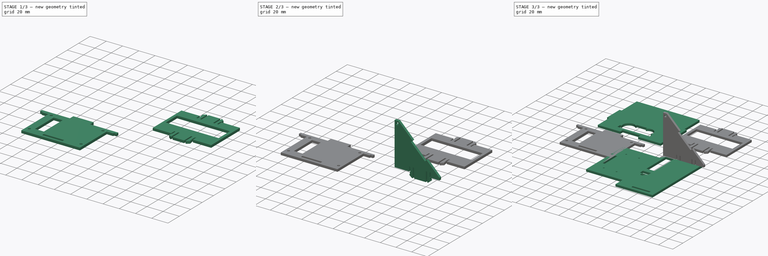
[diagram: build sequence overview — one tinted view per stage of 3, left to right]
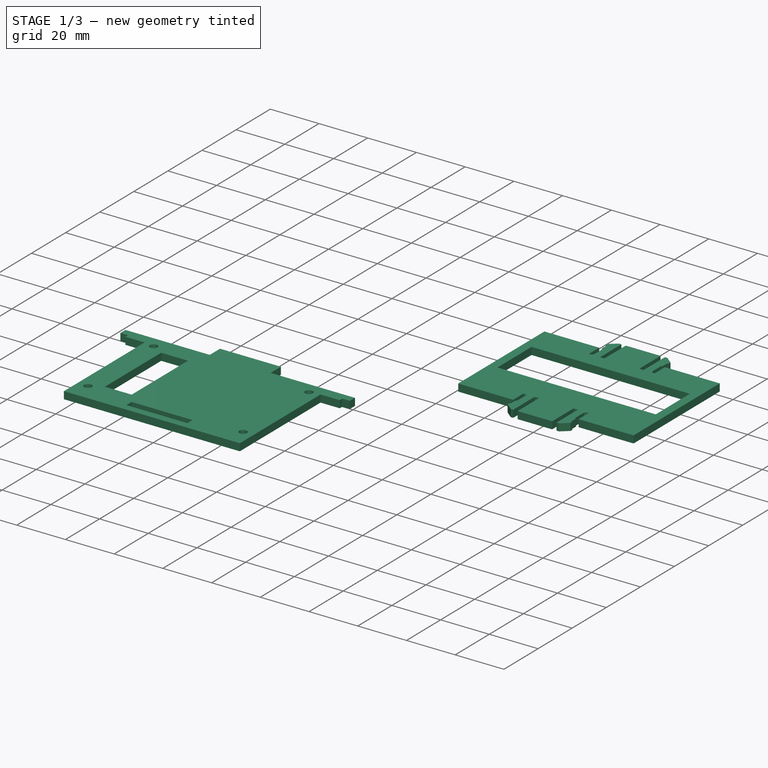
[diagram: stage 1 of 3 — iso view after this stage's code; geometry added in this stage tinted green]
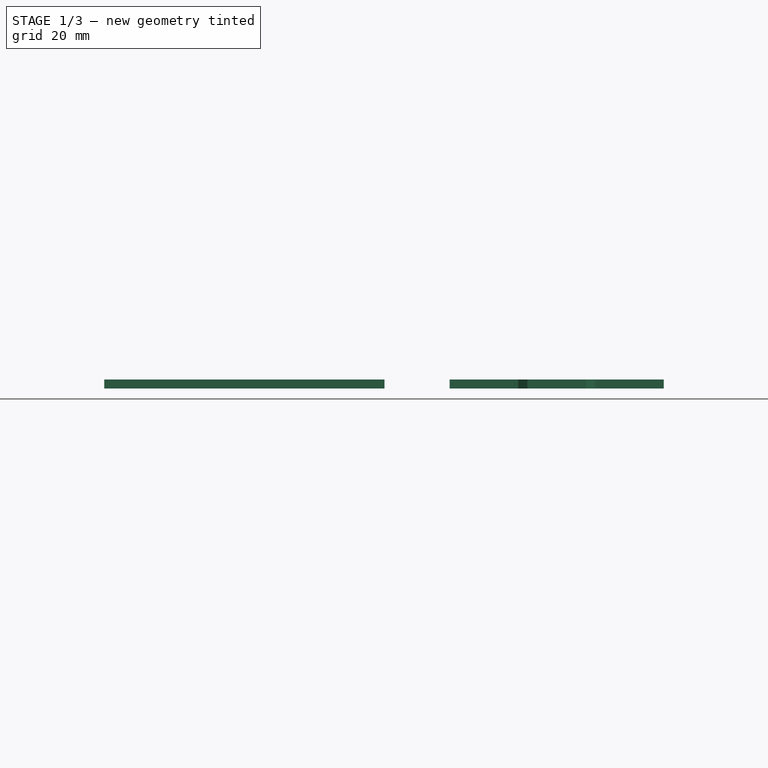
[diagram: stage 1 of 3 — front view after this stage's code; geometry added in this stage tinted green]
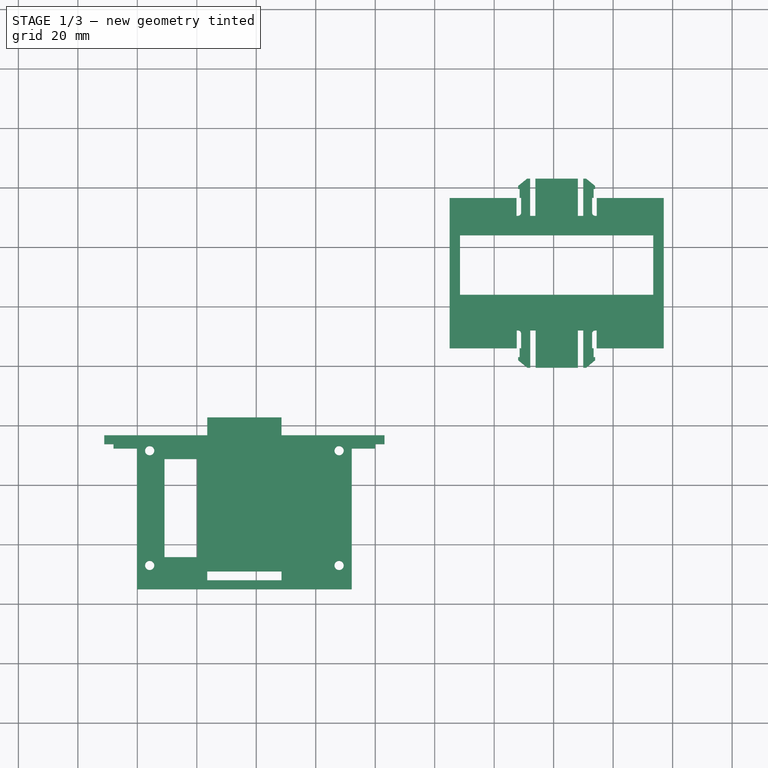
[diagram: stage 1 of 3 — top view after this stage's code; geometry added in this stage tinted green]
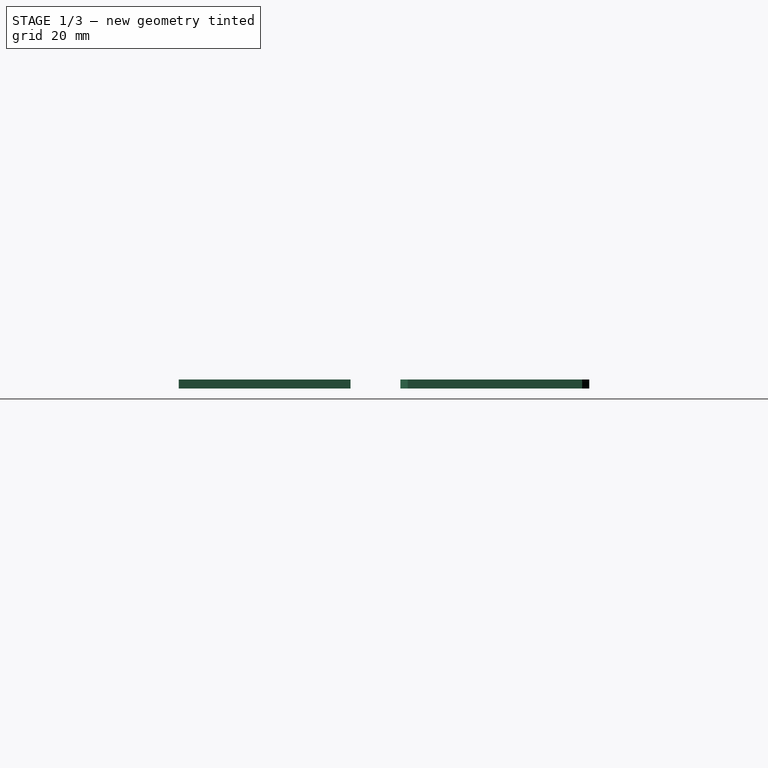
[diagram: stage 1 of 3 — right view after this stage's code; geometry added in this stage tinted green]
FCSTD DOCUMENT  (FreeCAD 0.19R24267 +148 (Git))
Label: Sumobot_acrilic_3mm
License: All rights reserved
LicenseURL: http://en.wikipedia.org/wiki/All_rights_reserved
objects: Sketcher::SketchObject×5, PartDesign::Pad×5, PartDesign::Body×5, App::Part×5, Part::FeaturePython×1
note: 21 computed .brp shape members not serialized (recipe doc carries the construction recipe); baked Part::Feature solids carry a one-line shape summary decoded from their .brp

FEATURE [Sketcher::SketchObject] Sketch015
  FullyConstrained = true
  MapMode = 5
  Support = -> [XY_Plane008]
  sketch-geometry (79):
    g0: LineSegment StartX=72.93 StartY=43 StartZ=0 EndX=73.93 EndY=43 EndZ=0
    g1: LineSegment StartX=73.93 StartY=42 StartZ=0 EndX=70.93 EndY=39.5 EndZ=0
    g2: LineSegment StartX=70.93 StartY=39.5 StartZ=0 EndX=69.93 EndY=39.5 EndZ=0
    g3: LineSegment StartX=69.93 StartY=39.5 StartZ=0 EndX=69.93 EndY=52 EndZ=0
    g4: LineSegment StartX=69.93 StartY=52 StartZ=0 EndX=68.13 EndY=52 EndZ=0
    g5: LineSegment StartX=68.13 StartY=52 StartZ=0 EndX=68.13 EndY=39.5 EndZ=0
    g6: LineSegment StartX=68.13 StartY=39.5 StartZ=0 EndX=53.94 EndY=39.5 EndZ=0
    g7: LineSegment StartX=53.94 StartY=39.5 StartZ=0 EndX=53.94 EndY=52 EndZ=0
    g8: LineSegment StartX=53.94 StartY=52 StartZ=0 EndX=52.14 EndY=52 EndZ=0
    g9: LineSegment StartX=52.14 StartY=52 StartZ=0 EndX=52.14 EndY=39.5 EndZ=0
    g10: LineSegment StartX=52.14 StartY=39.5 StartZ=0 EndX=51.14 EndY=39.5 EndZ=0
    g11: LineSegment StartX=51.14 StartY=39.5 StartZ=0 EndX=48.07 EndY=42 EndZ=0
    g12: LineSegment StartX=48.07 StartY=43 StartZ=0 EndX=49.07 EndY=43 EndZ=0
    g13: LineSegment StartX=47.57 StartY=46 StartZ=0 EndX=25 EndY=46 EndZ=0
    g14: LineSegment StartX=73.93 StartY=42 StartZ=0 EndX=73.93 EndY=43 EndZ=0
    g15: LineSegment StartX=48.07 StartY=42 StartZ=0 EndX=48.07 EndY=43 EndZ=0
    g16: LineSegment StartX=47.57 StartY=46 StartZ=0 EndX=47.57 EndY=52 EndZ=0
    g17: LineSegment StartX=47.57 StartY=52 StartZ=0 EndX=48.07 EndY=52 EndZ=0
    g18: LineSegment StartX=73.93 StartY=52 StartZ=0 EndX=74.43 EndY=52 EndZ=0
    g19: LineSegment StartX=74.43 StartY=52 StartZ=0 EndX=74.43 EndY=46 EndZ=0
    g20: LineSegment StartX=97 StartY=46 StartZ=0 EndX=74.43 EndY=46 EndZ=0
    g21: LineSegment StartX=69.93 StartY=52 StartZ=0 EndX=73.93 EndY=52 EndZ=0
    g22: LineSegment StartX=48.07 StartY=52 StartZ=0 EndX=52.14 EndY=52 EndZ=0
    g23: ArcOfCircle CenterX=48.07 CenterY=51 CenterZ=0 NormalX=0 NormalY=0 NormalZ=1 AngleXU=0 Radius=1 StartAngle=-1.8e-15 EndAngle=1.5708
    g24: ArcOfCircle CenterX=73.93 CenterY=51 CenterZ=0 NormalX=0 NormalY=0 NormalZ=1 AngleXU=0 Radius=1 StartAngle=1.5708 EndAngle=3.14159
    g25: LineSegment StartX=49.07 StartY=43 StartZ=0 EndX=49.07 EndY=51 EndZ=0
    g26: LineSegment StartX=72.93 StartY=43 StartZ=0 EndX=72.93 EndY=51 EndZ=0
    g27: LineSegment StartX=25 StartY=96.537 StartZ=0 EndX=25 EndY=46 EndZ=0
    g28: LineSegment StartX=97 StartY=46 StartZ=0 EndX=97 EndY=96.537 EndZ=0
    g29: LineSegment StartX=25 StartY=96.537 StartZ=0 EndX=47.5 EndY=96.537 EndZ=0
    g30: LineSegment StartX=47.5 StartY=96.537 StartZ=0 EndX=47.5 EndY=90.537 EndZ=0
    g31: LineSegment StartX=47.5 StartY=90.537 StartZ=0 EndX=48 EndY=90.537 EndZ=0
    g32: LineSegment StartX=49.07 StartY=91.607 StartZ=0 EndX=49.07 EndY=99.607 EndZ=0
    g33: LineSegment StartX=49.07 StartY=99.607 StartZ=0 EndX=48.07 EndY=99.607 EndZ=0
    g34: LineSegment StartX=48.07 StartY=99.607 StartZ=0 EndX=48.07 EndY=100.607 EndZ=0
    g35: LineSegment StartX=48.07 StartY=100.607 StartZ=0 EndX=51.07 EndY=103.037 EndZ=0
    g36: LineSegment StartX=51.07 StartY=103.037 StartZ=0 EndX=52.07 EndY=103.037 EndZ=0
    g37: LineSegment StartX=52.07 StartY=103.037 StartZ=0 EndX=52.07 EndY=90.537 EndZ=0
    g38: LineSegment StartX=69.93 StartY=90.537 StartZ=0 EndX=69.93 EndY=103.037 EndZ=0
    g39: LineSegment StartX=69.93 StartY=103.037 StartZ=0 EndX=70.93 EndY=103.037 EndZ=0
    g40: LineSegment StartX=70.93 StartY=103.037 StartZ=0 EndX=73.93 EndY=100.607 EndZ=0
    g41: LineSegment StartX=73.93 StartY=100.607 StartZ=0 EndX=73.93 EndY=99.607 EndZ=0
    g42: LineSegment StartX=73.93 StartY=99.607 StartZ=0 EndX=72.93 EndY=99.607 EndZ=0
    g43: LineSegment StartX=72.93 StartY=99.607 StartZ=0 EndX=72.93 EndY=91.607 EndZ=0
    g44: LineSegment StartX=74 StartY=90.537 StartZ=0 EndX=74.5 EndY=90.537 EndZ=0
    g45: LineSegment StartX=74.5 StartY=90.537 StartZ=0 EndX=74.5 EndY=96.537 EndZ=0
    g46: LineSegment StartX=74.5 StartY=96.537 StartZ=0 EndX=97 EndY=96.537 EndZ=0
    g47: ArcOfCircle CenterX=48 CenterY=91.607 CenterZ=0 NormalX=0 NormalY=0 NormalZ=1 AngleXU=0 Radius=1.07 StartAngle=4.71239 EndAngle=6.28319
    g48: ArcOfCircle CenterX=74 CenterY=91.607 CenterZ=0 NormalX=0 NormalY=0 NormalZ=1 AngleXU=0 Radius=1.07 StartAngle=3.14159 EndAngle=4.71239
    g49: LineSegment StartX=48 StartY=90.537 StartZ=0 EndX=52.07 EndY=90.537 EndZ=0
    g50: LineSegment StartX=69.93 StartY=90.537 StartZ=0 EndX=74 EndY=90.537 EndZ=0
    g51: LineSegment StartX=52.07 StartY=90.537 StartZ=0 EndX=53.87 EndY=90.537 EndZ=0
    g52: LineSegment StartX=53.87 StartY=90.537 StartZ=0 EndX=53.87 EndY=103.037 EndZ=0
    g53: LineSegment StartX=53.87 StartY=103.037 StartZ=0 EndX=68.13 EndY=103.037 EndZ=0
    g54: LineSegment StartX=68.13 StartY=103.037 StartZ=0 EndX=68.13 EndY=90.537 EndZ=0
    g55: LineSegment StartX=68.13 StartY=90.537 StartZ=0 EndX=69.93 EndY=90.537 EndZ=0
    g56: LineSegment StartX=28.5 StartY=84 StartZ=0 EndX=93.5 EndY=84 EndZ=0
    g57: LineSegment StartX=93.5 StartY=84 StartZ=0 EndX=93.5 EndY=64 EndZ=0
    g58: LineSegment StartX=93.5 StartY=64 StartZ=0 EndX=28.5 EndY=64 EndZ=0
    g59: LineSegment StartX=28.5 StartY=64 StartZ=0 EndX=28.5 EndY=84 EndZ=0
    g60: LineSegment StartX=48.07 StartY=99.607 StartZ=0 EndX=48.57 EndY=99.607 EndZ=0
    g61: LineSegment StartX=48.57 StartY=99.607 StartZ=0 EndX=48.57 EndY=96.607 EndZ=0
    g62: LineSegment StartX=48.57 StartY=96.607 StartZ=0 EndX=49.07 EndY=96.607 EndZ=0
    g63: LineSegment StartX=49.07 StartY=96.607 StartZ=0 EndX=49.07 EndY=91.607 EndZ=0
    g64: LineSegment StartX=73.93 StartY=99.607 StartZ=0 EndX=73.43 EndY=99.607 EndZ=0
    g65: LineSegment StartX=73.43 StartY=99.607 StartZ=0 EndX=73.43 EndY=96.607 EndZ=0
    g66: LineSegment StartX=73.43 StartY=96.607 StartZ=0 EndX=72.93 EndY=96.607 EndZ=0
    g67: LineSegment StartX=72.93 StartY=96.607 StartZ=0 EndX=72.93 EndY=91.607 EndZ=0
    g68: LineSegment StartX=48.07 StartY=43 StartZ=0 EndX=48.57 EndY=43 EndZ=0
    g69: LineSegment StartX=48.57 StartY=43 StartZ=0 EndX=48.57 EndY=46 EndZ=0
    g70: LineSegment StartX=48.57 StartY=46 StartZ=0 EndX=49.07 EndY=46 EndZ=0
    g71: LineSegment StartX=49.07 StartY=46 StartZ=0 EndX=49.07 EndY=51 EndZ=0
    g72: LineSegment StartX=73.93 StartY=43 StartZ=0 EndX=73.43 EndY=43 EndZ=0
    g73: LineSegment StartX=73.43 StartY=43 StartZ=0 EndX=73.43 EndY=46 EndZ=0
    g74: LineSegment StartX=73.43 StartY=46 StartZ=0 EndX=72.93 EndY=46 EndZ=0
    g75: LineSegment StartX=72.93 StartY=46 StartZ=0 EndX=72.93 EndY=51 EndZ=0
    g76: LineSegment StartX=28.5 StartY=84 StartZ=0 EndX=25 EndY=84 EndZ=0
    g77: LineSegment StartX=93.5 StartY=84 StartZ=0 EndX=97 EndY=84 EndZ=0
    g78: LineSegment StartX=93.5 StartY=64 StartZ=0 EndX=93.5 EndY=46 EndZ=0
  constraints (221):
    c: Coincident(g1,g2)
    c: Horizontal(g2)
    c: Coincident(g2,g3)
    c: Vertical(g3)
    c: Coincident(g3,g4)
    c: Coincident(g4,g5)
    c: Coincident(g5,g6)
    c: Coincident(g6,g7)
    c: Vertical(g7)
    c: Coincident(g7,g8)
    c: Horizontal(g8)
    c: Coincident(g8,g9)
    c: Vertical(g9)
    c: Coincident(g9,g10)
    c: Horizontal(g10)
    c: Coincident(g10,g11)
    c: Horizontal(g12)
    c: Horizontal(g4)
    c: Equal(g4,g8)
    c: Vertical(g5)
    c: Horizontal(g13)
    c: Equal(g5,g3)
    c: Equal(g2,g10)
    c: Horizontal(g0)
    c: Equal(g9,g7)
    c: DistanceX(g2,g2) = 1
    c: Vertical(g14)
    c: Coincident(g1,g14)
    c: Coincident(g0,g14)
    c: Equal(g2,g14)
    c: Vertical(g15)
    c: Coincident(g11,g15)
    c: Coincident(g12,g15)
    c: Equal(g12,g0)
    c: Equal(g15,g14)
    c: Vertical(g16)
    c: Coincident(g16,g17)
    c: Coincident(g18,g19)
    c: Vertical(g19)
    c: Horizontal(g18)
    c: Horizontal(g17)
    c: Horizontal(g20)
    c: Coincident(g13,g16)
    c: Equal(g17,g18)
    c: Coincident(g21,g3)
    c: Horizontal(g21)
    c: Coincident(g22,g8)
    c: Horizontal(g22)
    c: Coincident(g19,g20)
    c: Equal(g7,g5)
    c: Tangent(g17,g23) = 1.5708
    c: Tangent(g18,g24) = 1.5708
    c: Coincident(g17,g22)
    c: Equal(g23,g24)
    c: Coincident(g18,g21)
    c: Radius(g23) = 1
    c: DistanceX(g8,g8) = 1.8
    c: DistanceX(g22,g22) = 4.07
    c: DistanceX(g0,g0) = 1
    c: Coincident(g25,g12)
    c: Vertical(g25)
    c: DistanceY(g25,g25) = 8
    c: Coincident(g26,g0)
    c: Vertical(g26)
    c: Equal(g26,g25)
    c: DistanceX(g3,g24) = 3
    c: DistanceX(g17,g17) = 0.5
    c: Tangent(g25,g23) = -1.5708
    c: Tangent(g26,g24) = 1.5708
    c: DistanceY(g7,g7) = 12.5
    c: DistanceY(g13,g16) = 6
    c: Equal(g19,g16)
    c: Horizontal(g6)
    c: Coincident(g27,g13)
    c: Vertical(g27)
    c: DistanceX(g11,g1) = 25.86
    c: Equal(g20,g13)
    c: DistanceX(g20) = 97
    c: DistanceY(g20) = 46
    c: DistanceX(g13,g20) = 72
    c: Coincident(g28,g20)
    c: Vertical(g28)
    c: Horizontal(g29)
    c: Coincident(g29,g30)
    c: Vertical(g30)
    c: Coincident(g30,g31)
    c: Coincident(g32,g33)
    c: Horizontal(g33)
    c: Coincident(g33,g34)
    c: Vertical(g34)
    c: Coincident(g34,g35)
    c: Coincident(g35,g36)
    c: Horizontal(g36)
    c: Coincident(g36,g37)
    c: Vertical(g37)
    c: Vertical(g38)
    c: Coincident(g38,g39)
    c: Coincident(g39,g40)
    c: Coincident(g40,g41)
    c: Coincident(g41,g42)
    c: Horizontal(g42)
    c: Coincident(g42,g43)
    c: Coincident(g44,g45)
    c: Coincident(g45,g46)
    c: Horizontal(g46)
    c: Vertical(g32)
    c: Vertical(g43)
    c: Vertical(g45)
    c: Horizontal(g31)
    c: Horizontal(g44)
    c: Tangent(g31,g47) = -1.5708
    c: Tangent(g32,g47) = -1.5708
    c: Tangent(g43,g48) = -1.5708
    c: Tangent(g44,g48) = -1.5708
    c: Equal(g32,g43)
    c: Equal(g37,g38)
    c: Horizontal(g39)
    c: Equal(g39,g36)
    c: Equal(g33,g42)
    c: Coincident(g49,g31)
    c: Coincident(g49,g37)
    c: Horizontal(g49)
    c: Coincident(g50,g44)
    c: Tangent(g50,g48)
    c: Equal(g49,g50)
    c: Equal(g31,g44)
    c: DistanceX(g32,g37) = 3
    c: Vertical(g41)
    c: Equal(g34,g41)
    c: DistanceX(g42,g42) = 1
    c: Equal(g39,g42)
    c: Coincident(g37,g51)
    c: Coincident(g51,g52)
    c: Vertical(g52)
    c: Coincident(g52,g53)
    c: Horizontal(g53)
    c: Coincident(g53,g54)
    c: Vertical(g54)
    c: Coincident(g54,g55)
    c: Coincident(g55,g38)
    c: Horizontal(g55)
    c: Horizontal(g51)
    c: Equal(g54,g38)
    c: Equal(g37,g52)
    c: DistanceY(g54,g54) = 12.5
    c: Coincident(g50,g38)
    c: DistanceX(g49,g49) = 4.07
    c: DistanceY(g32,g32) = 8
    c: Equal(g55,g51)
    c: DistanceX(g55,g55) = 1.8
    c: DistanceX(g38,g43) = 3
    c: DistanceX(g44,g44) = 0.5
    c: DistanceY(g45,g45) = 6
    c: Equal(g30,g45)
    c: Equal(g34,g33)
    c: Coincident(g27,g29)
    c: Coincident(g46,g28)
    c: DistanceX(g34,g40) = 25.86
    c: Equal(g29,g46)
    c: Coincident(g56,g57)
    c: Coincident(g57,g58)
    c: Coincident(g58,g59)
    c: Coincident(g59,g56)
    c: Horizontal(g56)
    c: Horizontal(g58)
    c: Vertical(g57)
    c: Vertical(g59)
    c: DistanceY(g27,g27) = 50.537
    c: Coincident(g34,g60)
    c: Coincident(g60,g61)
    c: Vertical(g61)
    c: Coincident(g61,g62)
    c: PointOnObject(g62,g32)
    c: Horizontal(g62)
    c: Coincident(g62,g63)
    c: Coincident(g63,g47)
    c: Symmetric(g34,g32,g60)
    c: DistanceY(g61,g61) = 3
    c: Coincident(g41,g64)
    c: Coincident(g64,g65)
    c: Coincident(g65,g66)
    c: PointOnObject(g66,g43)
    c: Horizontal(g66)
    c: Coincident(g66,g67)
    c: Coincident(g67,g48)
    c: Vertical(g65)
    c: Symmetric(g42,g41,g64)
    c: Equal(g65,g61)
    c: Coincident(g15,g68)
    c: Coincident(g68,g69)
    c: Vertical(g69)
    c: Coincident(g69,g70)
    c: PointOnObject(g70,g25)
    c: Horizontal(g70)
    c: Coincident(g70,g71)
    c: Coincident(g71,g23)
    c: Symmetric(g15,g12,g68)
    c: DistanceY(g69,g69) = 3
    c: Coincident(g14,g72)
    c: Coincident(g72,g73)
    c: Vertical(g73)
    c: Coincident(g73,g74)
    c: PointOnObject(g74,g26)
    c: Horizontal(g74)
    c: Coincident(g74,g75)
    c: Coincident(g75,g24)
    c: Symmetric(g0,g14,g72)
    c: Equal(g69,g73)
    c: Coincident(g76,g56)
    c: PointOnObject(g76,g27)
    c: Coincident(g77,g56)
    c: PointOnObject(g77,g28)
    c: Horizontal(g77)
    c: Horizontal(g76)
    c: Equal(g77,g76)
    c: Coincident(g78,g57)
    c: PointOnObject(g78,g20)
    c: Vertical(g78)
    c: DistanceY(g57,g57) = 20
    c: DistanceX(g58,g58) = 65
    c: DistanceY(g78,g78) = 18
FEATURE [PartDesign::Pad] Pad003
  Direction = (1,1,1)
  Length = 3
  Length2 = 100
  Profile = -> Sketch015
  Type = 0
FEATURE [PartDesign::Body] Body003
  Group = -> [Sketch015,Pad003]
  Origin = -> Origin007
  Placement = pos=(-7,-102,-43) rot=(0.57735,0.57735,0.57735;2.0944rad)
  Tip = -> Pad003
FEATURE [App::Part] Part003  label="pared_trasera"
  Group = -> [Body003]
  Origin = -> Origin006
FEATURE [Sketcher::SketchObject] Sketch016
  FullyConstrained = true
  MapMode = 5
  Support = -> [XY_Plane010]
  sketch-geometry (42):
    g0: LineSegment StartX=-80.104 StartY=16.7479 StartZ=0 EndX=-56.5 EndY=16.7479 EndZ=0
    g1: LineSegment StartX=-56.5 StartY=16.7479 StartZ=0 EndX=-56.5 EndY=22.7479 EndZ=0
    g2: LineSegment StartX=-56.5 StartY=22.7479 StartZ=0 EndX=-31.5 EndY=22.7479 EndZ=0
    g3: LineSegment StartX=-31.5 StartY=22.7479 StartZ=0 EndX=-31.5 EndY=16.7479 EndZ=0
    g4: LineSegment StartX=-31.5 StartY=16.7479 StartZ=0 EndX=-7.896 EndY=16.7479 EndZ=0
    g5: LineSegment StartX=-7.896 StartY=16.7479 StartZ=0 EndX=-7.896 EndY=-35.0401 EndZ=0
    g6: LineSegment StartX=-7.896 StartY=-35.0401 StartZ=0 EndX=-80.104 EndY=-35.0401 EndZ=0
    g7: LineSegment StartX=-80.104 StartY=-35.0401 StartZ=0 EndX=-80.104 EndY=16.7479 EndZ=0
    g8: LineSegment StartX=-44 StartY=22.7479 StartZ=0 EndX=-44 EndY=-35.0401 EndZ=0
    g9: Circle CenterX=-75.85 CenterY=11.5599 CenterZ=0 NormalX=0 NormalY=0 NormalZ=1 AngleXU=0 Radius=1.55
    g10: Circle CenterX=-12.15 CenterY=11.5599 CenterZ=0 NormalX=0 NormalY=0 NormalZ=1 AngleXU=0 Radius=1.55
    g11: Circle CenterX=-12.15 CenterY=-27.0401 CenterZ=0 NormalX=0 NormalY=0 NormalZ=1 AngleXU=0 Radius=1.55
    g12: Circle CenterX=-75.85 CenterY=-27.0401 CenterZ=0 NormalX=0 NormalY=0 NormalZ=1 AngleXU=0 Radius=1.55
    g13: LineSegment StartX=-75.85 StartY=11.5599 StartZ=0 EndX=-12.15 EndY=11.5599 EndZ=0
    g14: LineSegment StartX=-12.15 StartY=11.5599 StartZ=0 EndX=-12.15 EndY=-27.0401 EndZ=0
    g15: LineSegment StartX=-12.15 StartY=-27.0401 StartZ=0 EndX=-75.85 EndY=-27.0401 EndZ=0
    g16: LineSegment StartX=-75.85 StartY=-27.0401 StartZ=0 EndX=-75.85 EndY=11.5599 EndZ=0
    g17: LineSegment StartX=-31.5 StartY=-32.0401 StartZ=0 EndX=-56.5 EndY=-32.0401 EndZ=0
    g18: LineSegment StartX=-56.5 StartY=-32.0401 StartZ=0 EndX=-56.5 EndY=-29.0401 EndZ=0
    g19: LineSegment StartX=-56.5 StartY=-29.0401 StartZ=0 EndX=-31.5 EndY=-29.0401 EndZ=0
    g20: LineSegment StartX=-31.5 StartY=-29.0401 StartZ=0 EndX=-31.5 EndY=-32.0401 EndZ=0
    g21: LineSegment StartX=-59.85 StartY=-24.2401 StartZ=0 EndX=-70.85 EndY=-24.2401 EndZ=0
    g22: LineSegment StartX=-70.85 StartY=-24.2401 StartZ=0 EndX=-70.85 EndY=8.75989 EndZ=0
    g23: LineSegment StartX=-70.85 StartY=8.75989 StartZ=0 EndX=-59.85 EndY=8.75989 EndZ=0
    g24: LineSegment StartX=-59.85 StartY=8.75989 StartZ=0 EndX=-59.85 EndY=-24.2401 EndZ=0
    g25: LineSegment StartX=-75.85 StartY=-7.74011 StartZ=0 EndX=-12.15 EndY=-7.74011 EndZ=0
    g26: LineSegment StartX=-80.104 StartY=16.7479 StartZ=0 EndX=-91.104 EndY=16.7479 EndZ=0
    g27: LineSegment StartX=-91.104 StartY=16.7479 StartZ=0 EndX=-91.104 EndY=13.7779 EndZ=0
    g28: LineSegment StartX=-91.104 StartY=13.7779 StartZ=0 EndX=-80.104 EndY=13.7779 EndZ=0
    g29: LineSegment StartX=-80.104 StartY=13.7779 StartZ=0 EndX=-80.104 EndY=-35.0401 EndZ=0
    g30: LineSegment StartX=-7.896 StartY=16.7479 StartZ=0 EndX=3.104 EndY=16.7479 EndZ=0
    g31: LineSegment StartX=3.104 StartY=16.7479 StartZ=0 EndX=3.104 EndY=13.7779 EndZ=0
    g32: LineSegment StartX=3.104 StartY=13.7779 StartZ=0 EndX=-7.896 EndY=13.7779 EndZ=0
    g33: LineSegment StartX=-7.896 StartY=13.7779 StartZ=0 EndX=-7.896 EndY=-35.0401 EndZ=0
    g34: LineSegment StartX=-91.104 StartY=13.7779 StartZ=0 EndX=-88.004 EndY=13.7779 EndZ=0
    g35: LineSegment StartX=-88.004 StartY=13.7779 StartZ=0 EndX=-88.004 EndY=12.2779 EndZ=0
    g36: LineSegment StartX=-88.004 StartY=12.2779 StartZ=0 EndX=-80.104 EndY=12.2779 EndZ=0
    g37: LineSegment StartX=-80.104 StartY=12.2779 StartZ=0 EndX=-80.104 EndY=-35.0401 EndZ=0
    g38: LineSegment StartX=3.104 StartY=13.7779 StartZ=0 EndX=0.004 EndY=13.7779 EndZ=0
    g39: LineSegment StartX=0.004 StartY=13.7779 StartZ=0 EndX=0.004 EndY=12.2779 EndZ=0
    g40: LineSegment StartX=0.004 StartY=12.2779 StartZ=0 EndX=-7.896 EndY=12.2779 EndZ=0
    g41: LineSegment StartX=-7.896 StartY=12.2779 StartZ=0 EndX=-7.896 EndY=-35.0401 EndZ=0
  constraints (115):
    c: Horizontal(g0)
    c: Coincident(g0,g1)
    c: Coincident(g1,g2)
    c: Horizontal(g2)
    c: Coincident(g2,g3)
    c: Vertical(g3)
    c: Coincident(g3,g4)
    c: Horizontal(g4)
    c: Coincident(g4,g5)
    c: Vertical(g5)
    c: Coincident(g5,g6)
    c: Horizontal(g6)
    c: Coincident(g6,g7)
    c: Coincident(g7,g0)
    c: Vertical(g7)
    c: Vertical(g1)
    c: Equal(g3,g1)
    c: Equal(g0,g4)
    c: PointOnObject(g8,g2)
    c: Vertical(g8)
    c: Symmetric(g6,g5,g8)
    c: DistanceX(g2) = -31.5
    c: DistanceY(g3,g3) = 6
    c: Coincident(g13,g14)
    c: Coincident(g14,g15)
    c: Coincident(g15,g16)
    c: Coincident(g16,g13)
    c: Horizontal(g13)
    c: Vertical(g14)
    c: Vertical(g16)
    c: Coincident(g13,g9)
    c: Coincident(g14,g11)
    c: Coincident(g13,g10)
    c: Coincident(g15,g12)
    c: Radius(g12) = 1.55
    c: DistanceY(g6,g12) = 8
    c: Equal(g12,g9)
    c: Equal(g9,g10)
    c: Equal(g10,g11)
    c: DistanceY(g14,g14) = 38.6
    c: Coincident(g17,g18)
    c: Coincident(g18,g19)
    c: Coincident(g19,g20)
    c: Coincident(g20,g17)
    c: Horizontal(g19)
    c: Vertical(g18)
    c: Vertical(g20)
    c: DistanceY(g20,g20) = 3
    c: DistanceX(g19,g19) = 25
    c: Coincident(g21,g22)
    c: Coincident(g22,g23)
    c: Coincident(g23,g24)
    c: Coincident(g24,g21)
    c: Horizontal(g21)
    c: Horizontal(g23)
    c: Vertical(g22)
    c: Vertical(g24)
    c: DistanceY(g22,g22) = 33
    c: DistanceX(g21,g21) = 11
    c: PointOnObject(g25,g16)
    c: Symmetric(g11,g10,g25)
    c: Symmetric(g21,g22,g25)
    c: DistanceX(g6,g6) = 72.208
    c: DistanceY(g7,g7) = 51.788
    c: DistanceX(g2,g2) = 25
    c: Symmetric(g12,g11,g8)
    c: DistanceX(g13,g13) = 63.7
    c: DistanceY(g5,g17) = 3
    c: Symmetric(g17,g17,g8)
    c: Coincident(g0,g26)
    c: Horizontal(g26)
    c: Coincident(g26,g27)
    c: Vertical(g27)
    c: Coincident(g27,g28)
    c: PointOnObject(g28,g7)
    c: Horizontal(g28)
    c: Coincident(g28,g29)
    c: Coincident(g29,g6)
    c: DistanceY(g27,g27) = 2.97
    c: DistanceX(g28,g28) = 11
    c: Coincident(g4,g30)
    c: Horizontal(g30)
    c: Coincident(g30,g31)
    c: Vertical(g31)
    c: Coincident(g31,g32)
    c: PointOnObject(g32,g5)
    c: Horizontal(g32)
    c: Coincident(g32,g33)
    c: Coincident(g33,g6)
    c: Equal(g32,g28)
    c: Equal(g27,g31)
    c: DistanceX(g9,g22) = 5
    c: DistanceY(g26) = 16.7479
    c: Coincident(g27,g34)
    c: PointOnObject(g34,g28)
    c: Coincident(g34,g35)
    c: Vertical(g35)
    c: Coincident(g35,g36)
    c: PointOnObject(g36,g7)
    c: Horizontal(g36)
    c: Coincident(g36,g37)
    c: Coincident(g37,g6)
    c: DistanceX(g34,g34) = 3.1
    c: DistanceY(g35,g35) = 1.5
    c: Coincident(g31,g38)
    c: PointOnObject(g38,g32)
    c: Coincident(g38,g39)
    c: Vertical(g39)
    c: Coincident(g39,g40)
    c: PointOnObject(g40,g5)
    c: Horizontal(g40)
    c: Coincident(g40,g41)
    c: Coincident(g41,g6)
    c: Equal(g35,g39)
    c: Equal(g38,g34)
FEATURE [PartDesign::Pad] Pad004
  Direction = (1,1,1)
  Length = 3
  Length2 = 100
  Profile = -> Sketch016
  Type = 0
FEATURE [PartDesign::Body] Body004
  Group = -> [Sketch016,Pad004]
  Origin = -> Origin009
  Placement = pos=(25.75,3,55.5) rot=(0.707107,0.707107,0;3.14159rad)
  Tip = -> Pad004
FEATURE [App::Part] Part004  label="techo"
  Group = -> [Body004]
  Origin = -> Origin008
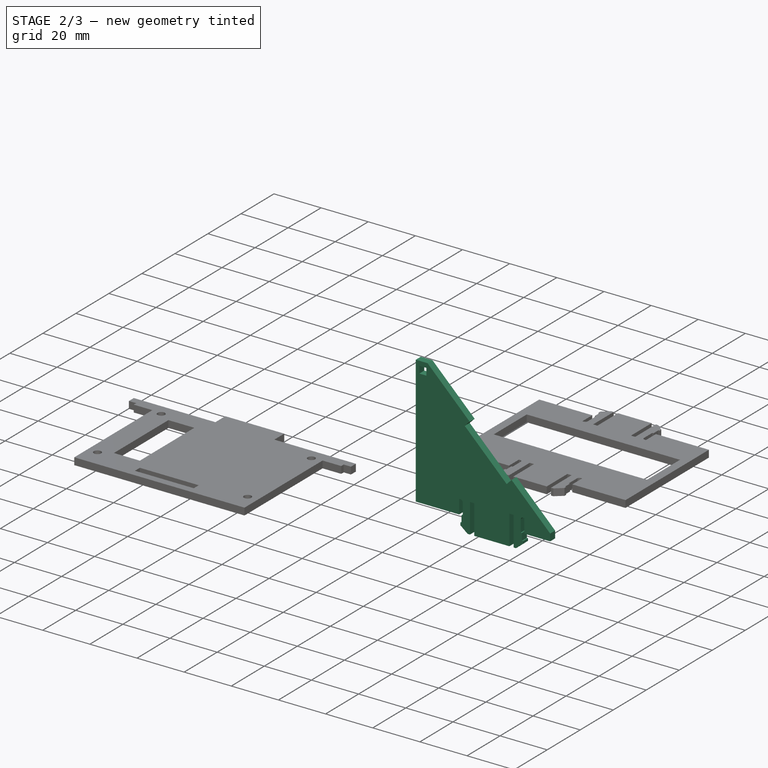
[diagram: stage 2 of 3 — iso view after this stage's code; geometry added in this stage tinted green]
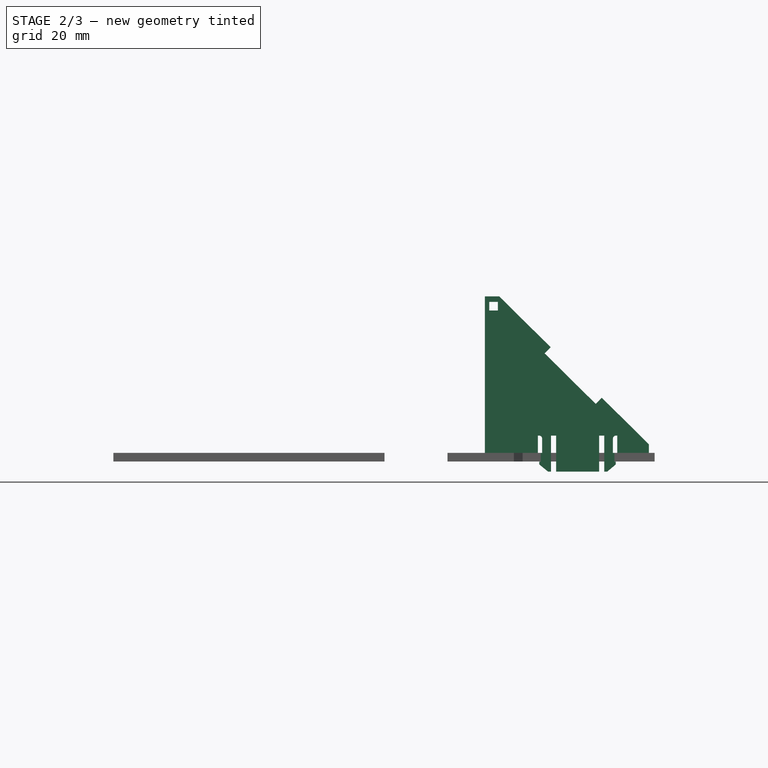
[diagram: stage 2 of 3 — front view after this stage's code; geometry added in this stage tinted green]
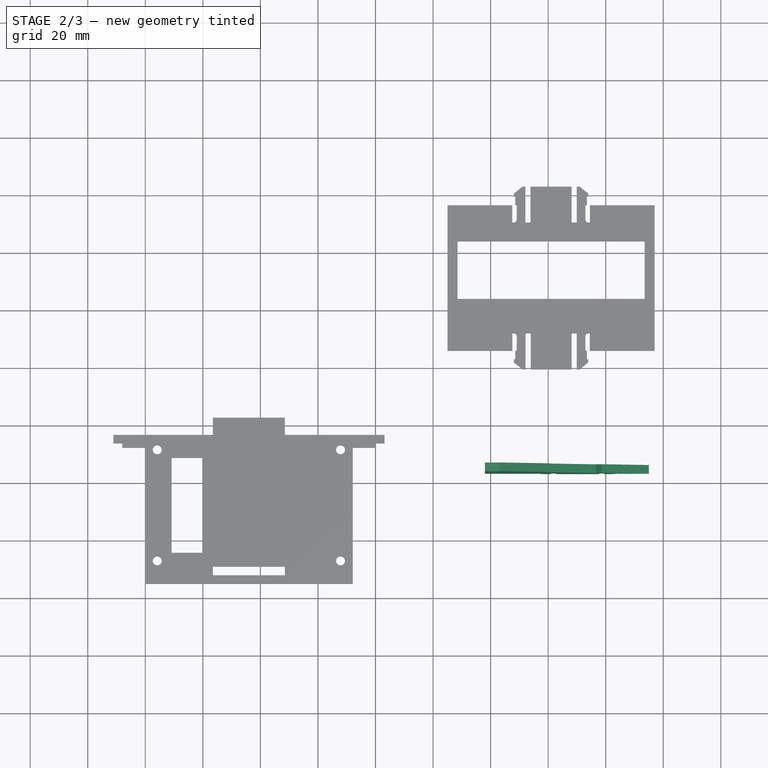
[diagram: stage 2 of 3 — top view after this stage's code; geometry added in this stage tinted green]
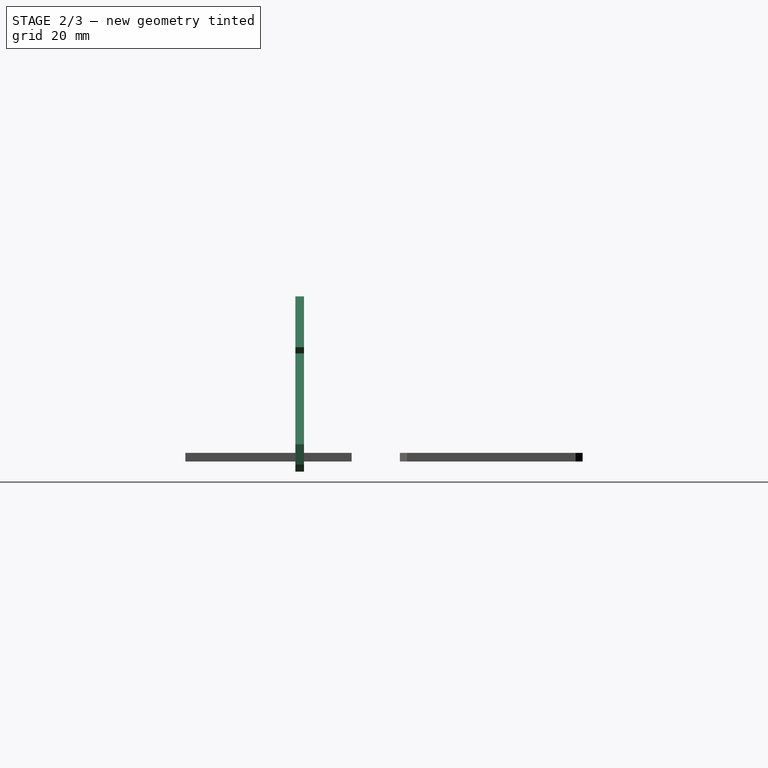
[diagram: stage 2 of 3 — right view after this stage's code; geometry added in this stage tinted green]
FEATURE [PartDesign::Body] Body
  Group = -> [Sketch011,Pad001]
  Origin = -> Origin001
  Tip = -> Pad001
FEATURE [App::Part] Part  label="Base"
  Group = -> [Body]
  Origin = -> Origin
FEATURE [PartDesign::Pad] Pad002
  Direction = (1,1,1)
  Length = 3
  Length2 = 100
  Profile = -> Sketch013
  Type = 0
FEATURE [PartDesign::Body] Body001
  Group = -> [Sketch013,Pad002]
  Origin = -> Origin003
  Placement = pos=(111,-85.0468,84.8874) rot=(1,0,0;1.5708rad)
  Tip = -> Pad002
FEATURE [App::Part] Part001  label="Lateral"
  Group = -> [Body001]
  Origin = -> Origin002
FEATURE [Part::FeaturePython] Clone  label="Lateral001"  # Draft clone (typed FeaturePython)
  AttacherType = Attacher::AttachEngine3D
  Fuse = false
  Objects = -> [Part001]
  Placement = pos=(0,91.25,0) rot=(0,0,1;0rad)
  Scale = (1,1,1)
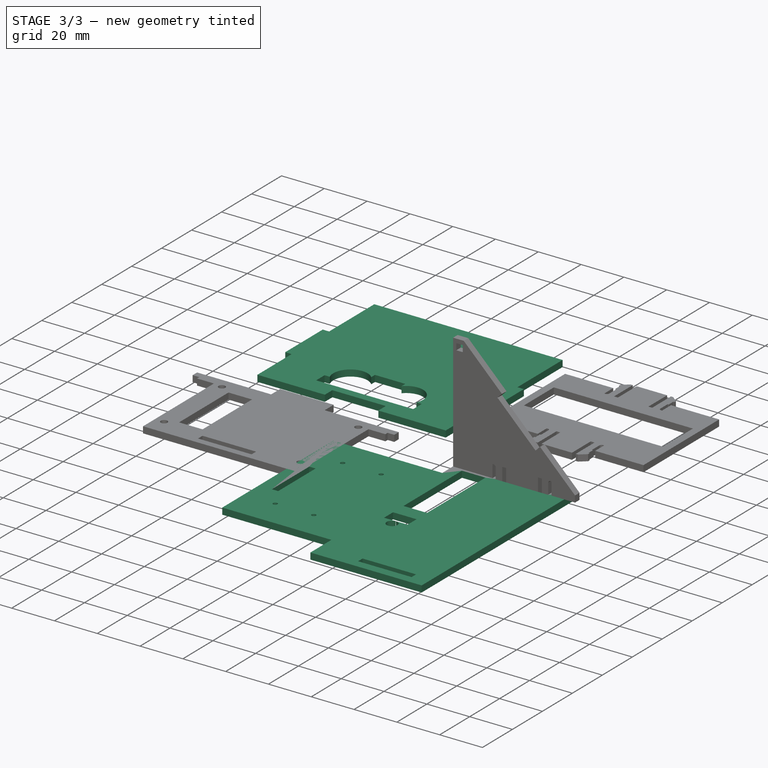
[diagram: stage 3 of 3 — iso view after this stage's code; geometry added in this stage tinted green]
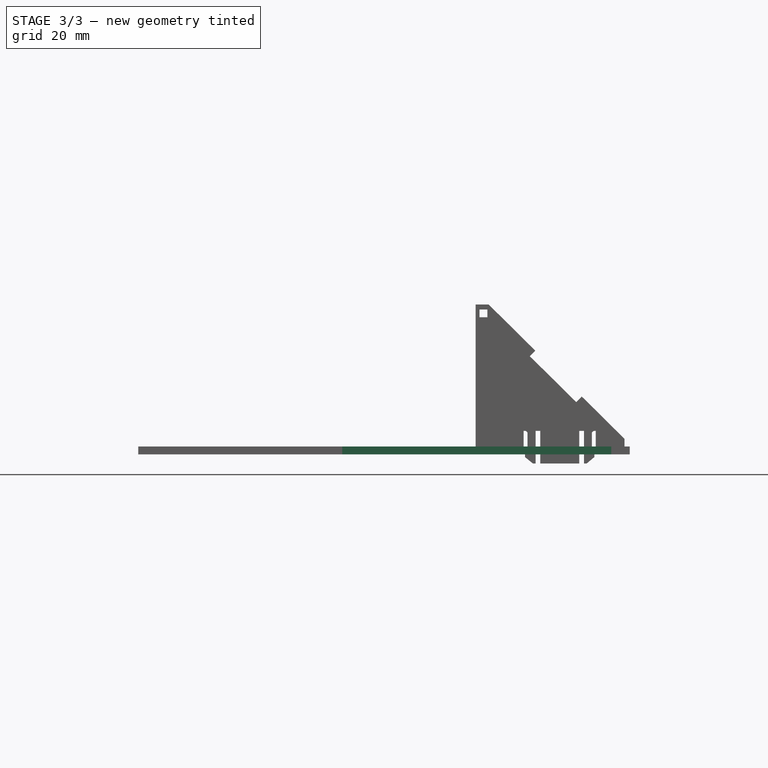
[diagram: stage 3 of 3 — front view after this stage's code; geometry added in this stage tinted green]
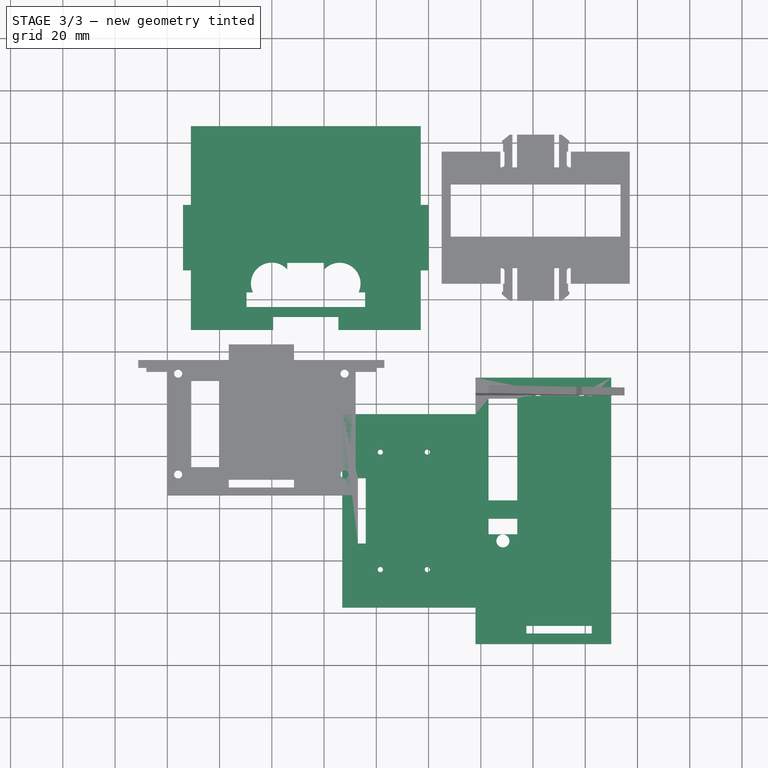
[diagram: stage 3 of 3 — top view after this stage's code; geometry added in this stage tinted green]
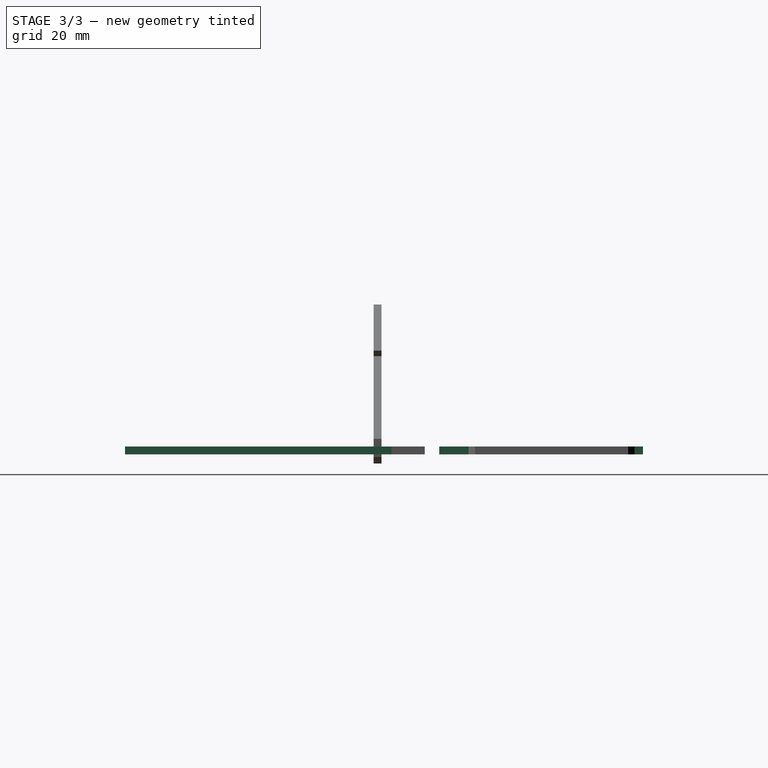
[diagram: stage 3 of 3 — right view after this stage's code; geometry added in this stage tinted green]
FEATURE [Sketcher::SketchObject] Sketch011
  FullyConstrained = true
  MapMode = 5
  Support = -> [XY_Plane001]
  sketch-geometry (44):
    g0: LineSegment StartX=-13.0376 StartY=-3.971 StartZ=0 EndX=-13.0376 EndY=-77.971 EndZ=0
    g1: LineSegment StartX=-13.0376 StartY=-77.971 StartZ=0 EndX=37.9624 EndY=-77.971 EndZ=0
    g2: LineSegment StartX=37.9624 StartY=-77.971 StartZ=0 EndX=37.9624 EndY=-91.971 EndZ=0
    g3: LineSegment StartX=37.9624 StartY=-91.971 StartZ=0 EndX=89.9624 EndY=-91.971 EndZ=0
    g4: LineSegment StartX=89.9624 StartY=-91.971 StartZ=0 EndX=89.9624 EndY=10.029 EndZ=0
    g5: LineSegment StartX=89.9624 StartY=10.029 StartZ=0 EndX=37.9624 EndY=10.029 EndZ=0
    g6: LineSegment StartX=37.9624 StartY=10.029 StartZ=0 EndX=37.9624 EndY=-3.971 EndZ=0
    g7: LineSegment StartX=37.9624 StartY=-3.971 StartZ=0 EndX=-13.0376 EndY=-3.971 EndZ=0
    g8: LineSegment StartX=57.4624 StartY=-84.971 StartZ=0 EndX=82.4624 EndY=-84.971 EndZ=0
    g9: LineSegment StartX=82.4624 StartY=-84.971 StartZ=0 EndX=82.4624 EndY=-87.971 EndZ=0
    g10: LineSegment StartX=82.4624 StartY=-87.971 StartZ=0 EndX=57.4624 EndY=-87.971 EndZ=0
    g11: LineSegment StartX=57.4624 StartY=-87.971 StartZ=0 EndX=57.4624 EndY=-84.971 EndZ=0
    g12: LineSegment StartX=57.4624 StartY=6.029 StartZ=0 EndX=82.4624 EndY=6.029 EndZ=0
    g13: LineSegment StartX=82.4624 StartY=6.029 StartZ=0 EndX=82.4624 EndY=3.029 EndZ=0
    g14: LineSegment StartX=82.4624 StartY=3.029 StartZ=0 EndX=57.4624 EndY=3.029 EndZ=0
    g15: LineSegment StartX=57.4624 StartY=3.029 StartZ=0 EndX=57.4624 EndY=6.029 EndZ=0
    g16: LineSegment StartX=-7.03761 StartY=-28.471 StartZ=0 EndX=-4.03761 EndY=-28.471 EndZ=0
    g17: LineSegment StartX=-4.03761 StartY=-28.471 StartZ=0 EndX=-4.03761 EndY=-53.471 EndZ=0
    g18: LineSegment StartX=-4.03761 StartY=-53.471 StartZ=0 EndX=-7.03761 EndY=-53.471 EndZ=0
    g19: LineSegment StartX=-7.03761 StartY=-53.471 StartZ=0 EndX=-7.03761 EndY=-28.471 EndZ=0
    g20: LineSegment StartX=42.9724 StartY=2.029 StartZ=0 EndX=53.9724 EndY=2.029 EndZ=0
    g21: LineSegment StartX=53.9724 StartY=2.029 StartZ=0 EndX=53.9724 EndY=-36.971 EndZ=0
    g22: LineSegment StartX=53.9724 StartY=-36.971 StartZ=0 EndX=42.9724 EndY=-36.971 EndZ=0
    g23: LineSegment StartX=42.9724 StartY=-36.971 StartZ=0 EndX=42.9724 EndY=2.029 EndZ=0
    g24: LineSegment StartX=42.9724 StartY=-43.971 StartZ=0 EndX=53.9724 EndY=-43.971 EndZ=0
    g25: LineSegment StartX=53.9724 StartY=-43.971 StartZ=0 EndX=53.9724 EndY=-49.971 EndZ=0
    g26: LineSegment StartX=53.9724 StartY=-49.971 StartZ=0 EndX=42.9724 EndY=-49.971 EndZ=0
    g27: LineSegment StartX=42.9724 StartY=-49.971 StartZ=0 EndX=42.9724 EndY=-43.971 EndZ=0
    g28: LineSegment StartX=82.4624 StartY=-87.971 StartZ=0 EndX=82.4624 EndY=-91.971 EndZ=0
    g29: LineSegment StartX=82.4624 StartY=6.029 StartZ=0 EndX=82.4624 EndY=10.029 EndZ=0
    g30: LineSegment StartX=82.4624 StartY=-87.971 StartZ=0 EndX=89.9624 EndY=-87.971 EndZ=0
    g31: LineSegment StartX=82.4624 StartY=6.029 StartZ=0 EndX=89.9624 EndY=6.029 EndZ=0
    g32: LineSegment StartX=53.9724 StartY=-43.971 StartZ=0 EndX=53.9724 EndY=-36.971 EndZ=0
    g33: LineSegment StartX=-19.0376 StartY=-40.971 StartZ=0 EndX=-7.03761 EndY=-40.971 EndZ=0
    g34: Circle CenterX=48.4724 CenterY=-52.471 CenterZ=0 NormalX=0 NormalY=0 NormalZ=1 AngleXU=0 Radius=2.5
    g35: Circle CenterX=19.5524 CenterY=-63.451 CenterZ=0 NormalX=0 NormalY=0 NormalZ=1 AngleXU=0 Radius=1
    g36: Circle CenterX=1.55239 CenterY=-63.451 CenterZ=0 NormalX=0 NormalY=0 NormalZ=1 AngleXU=0 Radius=1
    g37: Circle CenterX=19.5524 CenterY=-18.491 CenterZ=0 NormalX=0 NormalY=0 NormalZ=1 AngleXU=0 Radius=1
    g38: Circle CenterX=1.55239 CenterY=-18.491 CenterZ=0 NormalX=0 NormalY=0 NormalZ=1 AngleXU=0 Radius=1
    g39: LineSegment StartX=1.55239 StartY=-18.491 StartZ=0 EndX=19.5524 EndY=-18.491 EndZ=0
    g40: LineSegment StartX=19.5524 StartY=-18.491 StartZ=0 EndX=19.5524 EndY=-63.451 EndZ=0
    g41: LineSegment StartX=19.5524 StartY=-63.451 StartZ=0 EndX=1.55239 EndY=-63.451 EndZ=0
    g42: LineSegment StartX=1.55239 StartY=-63.451 StartZ=0 EndX=1.55239 EndY=-18.491 EndZ=0
    g43: LineSegment StartX=-7.03761 StartY=-40.971 StartZ=0 EndX=1.55239 EndY=-40.971 EndZ=0
  constraints (125):
    c: Vertical(g0)
    c: Coincident(g0,g1)
    c: Horizontal(g1)
    c: Coincident(g1,g2)
    c: Vertical(g2)
    c: Coincident(g2,g3)
    c: Horizontal(g3)
    c: Vertical(g4)
    c: Horizontal(g5)
    c: Coincident(g5,g6)
    c: Coincident(g6,g7)
    c: Horizontal(g7)
    c: Vertical(g6)
    c: Equal(g6,g2)
    c: Equal(g3,g5)
    c: Coincident(g0,g7)
    c: Coincident(g5,g4)
    c: Coincident(g3,g4)
    c: Coincident(g8,g9)
    c: Coincident(g9,g10)
    c: Coincident(g10,g11)
    c: Coincident(g11,g8)
    c: Horizontal(g8)
    c: Horizontal(g10)
    c: Vertical(g9)
    c: Vertical(g11)
    c: Coincident(g12,g13)
    c: Coincident(g13,g14)
    c: Coincident(g14,g15)
    c: Coincident(g15,g12)
    c: Horizontal(g12)
    c: Horizontal(g14)
    c: Vertical(g13)
    c: Vertical(g15)
    c: Coincident(g16,g17)
    c: Coincident(g17,g18)
    c: Coincident(g18,g19)
    c: Coincident(g19,g16)
    c: Horizontal(g16)
    c: Horizontal(g18)
    c: Vertical(g17)
    c: Vertical(g19)
    c: Coincident(g20,g21)
    c: Coincident(g21,g22)
    c: Coincident(g22,g23)
    c: Coincident(g23,g20)
    c: Horizontal(g20)
    c: Horizontal(g22)
    c: Vertical(g21)
    c: Vertical(g23)
    c: Coincident(g24,g25)
    c: Coincident(g25,g26)
    c: Coincident(g26,g27)
    c: Coincident(g27,g24)
    c: Horizontal(g24)
    c: Horizontal(g26)
    c: Vertical(g25)
    c: Vertical(g27)
    c: DistanceY(g13,g13) = 3
    c: Equal(g13,g9)
    c: Equal(g9,g16)
    c: DistanceY(g3,g4) = 102
    c: Coincident(g28,g9)
    c: PointOnObject(g28,g3)
    c: Vertical(g28)
    c: Coincident(g29,g12)
    c: PointOnObject(g29,g5)
    c: Vertical(g29)
    c: DistanceY(g29,g29) = 4
    c: Equal(g29,g28)
    c: Coincident(g30,g9)
    c: PointOnObject(g30,g4)
    c: Horizontal(g30)
    c: Coincident(g31,g12)
    c: PointOnObject(g31,g4)
    c: Horizontal(g31)
    c: Equal(g31,g30)
    c: DistanceX(g30,g30) = 7.5
    c: DistanceX(g4) = 89.9624
    c: DistanceX(g8,g8) = 25
    c: Equal(g14,g8)
    c: Equal(g20,g24)
    c: DistanceX(g22,g22) = 11
    c: Coincident(g32,g24)
    c: Vertical(g32)
    c: Coincident(g32,g21)
    c: DistanceY(g32,g32) = 7
    c: DistanceX(g20,g14) = 3.49
    c: DistanceY(g14,g20) = -1
    c: DistanceY(g27,g27) = 6
    c: DistanceY(g23,g23) = 39
    c: DistanceX(g5,g5) = 52
    c: DistanceY(g6,g6) = 14
    c: DistanceX(g7,g7) = 51
    c: Symmetric(g33,g33,g0)
    c: Symmetric(g0,g0,g33)
    c: Symmetric(g16,g18,g33)
    c: DistanceX(g33,g33) = 12
    c: Equal(g17,g8)
    c: Radius(g34) = 2.5
    c: Tangent(g34,g26)
    c: DistanceX(g34,g25) = 5.5
    c: Equal(g38,g37)
    c: Equal(g37,g36)
    c: Equal(g36,g35)
    c: Radius(g35) = 1
    c: Coincident(g39,g40)
    c: Coincident(g40,g41)
    c: Coincident(g41,g42)
    c: Coincident(g42,g39)
    c: Horizontal(g39)
    c: Horizontal(g41)
    c: Vertical(g40)
    c: Vertical(g42)
    c: Coincident(g39,g38)
    c: Coincident(g40,g35)
    c: Coincident(g39,g37)
    c: Coincident(g36,g41)
    c: Coincident(g43,g33)
    c: Horizontal(g43)
    c: Symmetric(g36,g38,g43)
    c: DistanceX(g43,g43) = 8.59
    c: DistanceY(g42,g42) = 44.96
    c: DistanceX(g39,g39) = 18
    c: DistanceY(g-1,g13) = 3.029
FEATURE [Sketcher::SketchObject] Sketch013  label="Sketch012"
  FullyConstrained = true
  MapMode = 5
  Support = -> [XY_Plane003]
  sketch-geometry (50):
    g0: LineSegment StartX=-28.4972 StartY=-84.894 StartZ=0 EndX=-27.4972 EndY=-84.894 EndZ=0
    g1: LineSegment StartX=-27.4972 StartY=-85.894 StartZ=0 EndX=-30.4972 EndY=-88.394 EndZ=0
    g2: LineSegment StartX=-30.4972 StartY=-88.394 StartZ=0 EndX=-31.4972 EndY=-88.394 EndZ=0
    g3: LineSegment StartX=-31.4972 StartY=-88.394 StartZ=0 EndX=-31.4972 EndY=-75.894 EndZ=0
    g4: LineSegment StartX=-31.4972 StartY=-75.894 StartZ=0 EndX=-33.2972 EndY=-75.894 EndZ=0
    g5: LineSegment StartX=-33.2972 StartY=-75.894 StartZ=0 EndX=-33.2972 EndY=-88.394 EndZ=0
    g6: LineSegment StartX=-33.2972 StartY=-88.394 StartZ=0 EndX=-48.2272 EndY=-88.394 EndZ=0
    g7: LineSegment StartX=-48.2272 StartY=-88.394 StartZ=0 EndX=-48.2272 EndY=-75.894 EndZ=0
    g8: LineSegment StartX=-48.2272 StartY=-75.894 StartZ=0 EndX=-50.0272 EndY=-75.894 EndZ=0
    g9: LineSegment StartX=-50.0272 StartY=-75.894 StartZ=0 EndX=-50.0272 EndY=-88.394 EndZ=0
    g10: LineSegment StartX=-50.0272 StartY=-88.394 StartZ=0 EndX=-51.0272 EndY=-88.394 EndZ=0
    g11: LineSegment StartX=-51.0272 StartY=-88.394 StartZ=0 EndX=-54.0972 EndY=-85.894 EndZ=0
    g12: LineSegment StartX=-54.0972 StartY=-84.894 StartZ=0 EndX=-53.0972 EndY=-84.894 EndZ=0
    g13: LineSegment StartX=-54.5972 StartY=-81.894 StartZ=0 EndX=-72.9972 EndY=-81.894 EndZ=0
    g14: LineSegment StartX=-27.4972 StartY=-85.894 StartZ=0 EndX=-27.4972 EndY=-84.894 EndZ=0
    g15: LineSegment StartX=-54.0972 StartY=-85.894 StartZ=0 EndX=-54.0972 EndY=-84.894 EndZ=0
    g16: LineSegment StartX=-54.5972 StartY=-81.894 StartZ=0 EndX=-54.5972 EndY=-75.894 EndZ=0
    g17: LineSegment StartX=-54.5972 StartY=-75.894 StartZ=0 EndX=-54.0972 EndY=-75.894 EndZ=0
    g18: LineSegment StartX=-27.4972 StartY=-75.894 StartZ=0 EndX=-26.9972 EndY=-75.894 EndZ=0
    g19: LineSegment StartX=-26.9972 StartY=-75.894 StartZ=0 EndX=-26.9972 EndY=-81.894 EndZ=0
    g20: LineSegment StartX=-15.9972 StartY=-81.894 StartZ=0 EndX=-26.9972 EndY=-81.894 EndZ=0
    g21: LineSegment StartX=-31.4972 StartY=-75.894 StartZ=0 EndX=-27.4972 EndY=-75.894 EndZ=0
    g22: LineSegment StartX=-54.0972 StartY=-75.894 StartZ=0 EndX=-50.0272 EndY=-75.894 EndZ=0
    g23: ArcOfCircle CenterX=-54.0972 CenterY=-76.894 CenterZ=0 NormalX=0 NormalY=0 NormalZ=1 AngleXU=0 Radius=1 StartAngle=4.7e-15 EndAngle=1.5708
    g24: ArcOfCircle CenterX=-27.4972 CenterY=-76.894 CenterZ=0 NormalX=0 NormalY=0 NormalZ=1 AngleXU=0 Radius=1 StartAngle=1.5708 EndAngle=3.14159
    g25: LineSegment StartX=-53.0972 StartY=-84.894 StartZ=0 EndX=-53.0972 EndY=-76.894 EndZ=0
    g26: LineSegment StartX=-28.4972 StartY=-84.894 StartZ=0 EndX=-28.4972 EndY=-76.894 EndZ=0
    g27: LineSegment StartX=-15.9972 StartY=-78.894 StartZ=0 EndX=-32.3564 EndY=-62.7268 EndZ=0
    g28: LineSegment StartX=-66.4972 StartY=-28.9866 StartZ=0 EndX=-72.9972 EndY=-28.9866 EndZ=0
    g29: LineSegment StartX=-72.9972 StartY=-28.9866 StartZ=0 EndX=-72.9972 EndY=-81.894 EndZ=0
    g30: LineSegment StartX=-15.9972 StartY=-81.894 StartZ=0 EndX=-15.9972 EndY=-78.894 EndZ=0
    g31: LineSegment StartX=-32.3564 StartY=-62.7268 StartZ=0 EndX=-34.4652 EndY=-64.8606 EndZ=0
    g32: LineSegment StartX=-34.4652 StartY=-64.8606 StartZ=0 EndX=-52.2468 EndY=-47.2876 EndZ=0
    g33: LineSegment StartX=-52.2468 StartY=-47.2876 StartZ=0 EndX=-50.1381 EndY=-45.1538 EndZ=0
    g34: LineSegment StartX=-50.1381 StartY=-45.1538 StartZ=0 EndX=-66.4972 EndY=-28.9866 EndZ=0
    g35: LineSegment StartX=-71.4972 StartY=-32.4036 StartZ=0 EndX=-68.4972 EndY=-32.4036 EndZ=0
    g36: LineSegment StartX=-68.4972 StartY=-32.4036 StartZ=0 EndX=-68.4972 EndY=-29.4036 EndZ=0
    g37: LineSegment StartX=-68.4972 StartY=-29.4036 StartZ=0 EndX=-71.4972 EndY=-29.4036 EndZ=0
    g38: LineSegment StartX=-71.4972 StartY=-29.4036 StartZ=0 EndX=-71.4972 EndY=-32.4036 EndZ=0
    g39: LineSegment StartX=-27.4972 StartY=-84.894 StartZ=0 EndX=-27.9972 EndY=-84.894 EndZ=0
    g40: LineSegment StartX=-27.9972 StartY=-84.894 StartZ=0 EndX=-27.9972 EndY=-81.894 EndZ=0
    g41: LineSegment StartX=-27.9972 StartY=-81.894 StartZ=0 EndX=-28.4972 EndY=-81.894 EndZ=0
    g42: LineSegment StartX=-28.4972 StartY=-81.894 StartZ=0 EndX=-28.4972 EndY=-76.894 EndZ=0
    g43: LineSegment StartX=-54.0972 StartY=-84.894 StartZ=0 EndX=-53.5972 EndY=-84.894 EndZ=0
    g44: LineSegment StartX=-53.5972 StartY=-84.894 StartZ=0 EndX=-53.5972 EndY=-81.894 EndZ=0
    g45: LineSegment StartX=-53.5972 StartY=-81.894 StartZ=0 EndX=-53.0972 EndY=-81.894 EndZ=0
    g46: LineSegment StartX=-53.0972 StartY=-81.894 StartZ=0 EndX=-53.0972 EndY=-76.894 EndZ=0
    g47: LineSegment StartX=-72.9972 StartY=-28.9866 StartZ=0 EndX=-72.9972 EndY=-27.4866 EndZ=0
    g48: LineSegment StartX=-72.9972 StartY=-27.4866 StartZ=0 EndX=-68.015 EndY=-27.4866 EndZ=0
    g49: LineSegment StartX=-68.015 StartY=-27.4866 StartZ=0 EndX=-66.4972 EndY=-28.9866 EndZ=0
  constraints (142):
    c: Coincident(g1,g2)
    c: Horizontal(g2)
    c: Coincident(g2,g3)
    c: Vertical(g3)
    c: Coincident(g3,g4)
    c: Coincident(g4,g5)
    c: Coincident(g5,g6)
    c: Coincident(g6,g7)
    c: Vertical(g7)
    c: Coincident(g7,g8)
    c: Horizontal(g8)
    c: Coincident(g8,g9)
    c: Vertical(g9)
    c: Coincident(g9,g10)
    c: Horizontal(g10)
    c: Coincident(g10,g11)
    c: Horizontal(g12)
    c: Horizontal(g4)
    c: Equal(g4,g8)
    c: Vertical(g5)
    c: Horizontal(g13)
    c: Equal(g5,g3)
    c: Equal(g2,g10)
    c: Horizontal(g0)
    c: Equal(g9,g7)
    c: DistanceX(g2,g2) = 1
    c: Vertical(g14)
    c: Coincident(g1,g14)
    c: Coincident(g0,g14)
    c: Equal(g2,g14)
    c: Vertical(g15)
    c: Coincident(g11,g15)
    c: Coincident(g12,g15)
    c: Equal(g12,g0)
    c: Equal(g15,g14)
    c: Vertical(g16)
    c: Coincident(g16,g17)
    c: Coincident(g18,g19)
    c: Vertical(g19)
    c: Horizontal(g18)
    c: Horizontal(g17)
    c: Horizontal(g20)
    c: Coincident(g13,g16)
    c: Equal(g17,g18)
    c: Coincident(g21,g3)
    c: Horizontal(g21)
    c: Coincident(g22,g8)
    c: Horizontal(g22)
    c: Coincident(g19,g20)
    c: Equal(g7,g5)
    c: Tangent(g17,g23) = 1.5708
    c: Tangent(g18,g24) = 1.5708
    c: Coincident(g17,g22)
    c: Equal(g23,g24)
    c: Coincident(g18,g21)
    c: Radius(g23) = 1
    c: DistanceX(g8,g8) = 1.8
    c: DistanceX(g22,g22) = 4.07
    c: DistanceX(g0,g0) = 1
    c: Coincident(g25,g12)
    c: Vertical(g25)
    c: DistanceY(g25,g25) = 8
    c: Coincident(g26,g0)
    c: Vertical(g26)
    c: Equal(g26,g25)
    c: DistanceX(g3,g24) = 3
    c: DistanceX(g17,g17) = 0.5
    c: Tangent(g25,g23) = -1.5708
    c: Tangent(g26,g24) = 1.5708
    c: DistanceY(g7,g7) = 12.5
    c: DistanceY(g13,g16) = 6
    c: Equal(g19,g16)
    c: Horizontal(g6)
    c: Coincident(g34,g28)
    c: Horizontal(g28)
    c: Coincident(g28,g29)
    c: Coincident(g29,g13)
    c: Vertical(g29)
    c: Coincident(g30,g20)
    c: Coincident(g30,g27)
    c: Vertical(g30)
    c: DistanceY(g30,g30) = 3
    c: DistanceX(g24,g20) = 12.5
    c: DistanceX(g13,g20) = 57
    c: DistanceX(g28,g28) = 6.5
    c: PointOnObject(g31,g27)
    c: Coincident(g31,g32)
    c: Coincident(g32,g33)
    c: PointOnObject(g33,g27)
    c: Perpendicular(g27,g33)
    c: Perpendicular(g27,g31)
    c: Perpendicular(g31,g32)
    c: PointOnObject(g27,g31)
    c: PointOnObject(g34,g33)
    c: Tangent(g27,g34)
    c: Distance(g27,g28) = 71
    c: Distance(g31) = 3
    c: Equal(g34,g27)
    c: Distance(g32) = 25
    c: DistanceX(g11,g1) = 26.6
    c: Coincident(g35,g36)
    c: Coincident(g36,g37)
    c: Coincident(g37,g38)
    c: Coincident(g38,g35)
    c: Horizontal(g35)
    c: Horizontal(g37)
    c: Vertical(g36)
    c: Vertical(g38)
    c: DistanceY(g38,g38) = 3
    c: DistanceX(g37,g37) = 3
    c: DistanceX(g28,g37) = 1.5
    c: DistanceX(g13) = -72.9972
    c: DistanceY(g13) = -81.894
    c: DistanceY(g35,g28) = 3.417
    c: Coincident(g14,g39)
    c: Coincident(g39,g40)
    c: Vertical(g40)
    c: Coincident(g40,g41)
    c: PointOnObject(g41,g26)
    c: Coincident(g41,g42)
    c: Coincident(g42,g24)
    c: Horizontal(g41)
    c: Symmetric(g0,g14,g39)
    c: DistanceY(g40,g40) = 3
    c: Coincident(g15,g43)
    c: Coincident(g43,g44)
    c: Vertical(g44)
    c: Coincident(g44,g45)
    c: PointOnObject(g45,g25)
    c: Horizontal(g45)
    c: Coincident(g45,g46)
    c: Coincident(g46,g23)
    c: Symmetric(g15,g12,g43)
    c: Equal(g44,g40)
    c: Coincident(g29,g47)
    c: Vertical(g47)
    c: Coincident(g47,g48)
    c: Horizontal(g48)
    c: Coincident(g48,g49)
    c: Coincident(g49,g34)
    c: Parallel(g49,g34)
    c: DistanceY(g47,g47) = 1.5
FEATURE [Sketcher::SketchObject] Sketch014
  FullyConstrained = false
  MapMode = 5
  Support = -> [XY_Plane006]
  sketch-geometry (27):
    g0: LineSegment StartX=-71 StartY=106.286 StartZ=0 EndX=17 EndY=106.286 EndZ=0
    g1: LineSegment StartX=17 StartY=106.286 StartZ=0 EndX=17 EndY=76.145 EndZ=0
    g2: LineSegment StartX=17 StartY=76.145 StartZ=0 EndX=20 EndY=76.145 EndZ=0
    g3: LineSegment StartX=20 StartY=76.145 StartZ=0 EndX=20 EndY=51.145 EndZ=0
    g4: LineSegment StartX=20 StartY=51.145 StartZ=0 EndX=17 EndY=51.145 EndZ=0
    g5: LineSegment StartX=17 StartY=51.145 StartZ=0 EndX=17 EndY=28.29 EndZ=0
    g6: LineSegment StartX=17 StartY=28.29 StartZ=0 EndX=-14.497 EndY=28.29 EndZ=0
    g7: LineSegment StartX=-14.497 StartY=28.29 StartZ=0 EndX=-14.497 EndY=33.293 EndZ=0
    g8: LineSegment StartX=-14.497 StartY=33.293 StartZ=0 EndX=-39.503 EndY=33.293 EndZ=0
    g9: LineSegment StartX=-39.503 StartY=33.293 StartZ=0 EndX=-39.503 EndY=28.29 EndZ=0
    g10: LineSegment StartX=-39.503 StartY=28.29 StartZ=0 EndX=-71 EndY=28.29 EndZ=0
    g11: LineSegment StartX=-71 StartY=28.29 StartZ=0 EndX=-71 EndY=51.145 EndZ=0
    g12: LineSegment StartX=-71 StartY=51.145 StartZ=0 EndX=-74 EndY=51.145 EndZ=0
    g13: LineSegment StartX=-74 StartY=51.145 StartZ=0 EndX=-74 EndY=76.145 EndZ=0
    g14: LineSegment StartX=-74 StartY=76.145 StartZ=0 EndX=-71 EndY=76.145 EndZ=0
    g15: LineSegment StartX=-71 StartY=76.145 StartZ=0 EndX=-71 EndY=106.286 EndZ=0
    g16: LineSegment StartX=-47.2266 StartY=42.6844 StartZ=0 EndX=-49.703 EndY=42.6844 EndZ=0
    g17: LineSegment StartX=-49.703 StartY=42.6844 StartZ=0 EndX=-49.703 EndY=37.038 EndZ=0
    g18: LineSegment StartX=-49.703 StartY=37.038 StartZ=0 EndX=-4.297 EndY=37.038 EndZ=0
    g19: LineSegment StartX=-4.297 StartY=37.038 StartZ=0 EndX=-4.297 EndY=42.6844 EndZ=0
    g20: LineSegment StartX=-4.297 StartY=42.6844 StartZ=0 EndX=-6.7734 EndY=42.6844 EndZ=0
    g21: ArcOfCircle CenterX=-14.029 CenterY=46.0544 CenterZ=0 NormalX=0 NormalY=0 NormalZ=1 AngleXU=0 Radius=8 StartAngle=5.84836 EndAngle=8.67753
    g22: ArcOfCircle CenterX=-39.9909 CenterY=46.0967 CenterZ=0 NormalX=0 NormalY=0 NormalZ=1 AngleXU=0 Radius=8 StartAngle=0.740059 EndAngle=3.58226
    g23: LineSegment StartX=-34.0834 StartY=51.4914 StartZ=0 EndX=-34.0834 EndY=53.9914 EndZ=0
    g24: LineSegment StartX=-34.0834 StartY=53.9914 StartZ=0 EndX=-19.8974 EndY=53.9914 EndZ=0
    g25: LineSegment StartX=-19.8974 StartY=53.9914 StartZ=0 EndX=-19.8974 EndY=51.4914 EndZ=0
    g26: LineSegment StartX=-27 StartY=33.293 StartZ=0 EndX=-27 EndY=37.038 EndZ=0
  constraints (81):
    c: Horizontal(g0)
    c: Coincident(g0,g1)
    c: Vertical(g1)
    c: Coincident(g1,g2)
    c: Coincident(g2,g3)
    c: Vertical(g3)
    c: Coincident(g3,g4)
    c: Coincident(g4,g5)
    c: Coincident(g5,g6)
    c: Coincident(g6,g7)
    c: Coincident(g7,g8)
    c: Horizontal(g8)
    c: Coincident(g8,g9)
    c: Vertical(g9)
    c: Coincident(g9,g10)
    c: Horizontal(g10)
    c: Coincident(g10,g11)
    c: Coincident(g11,g12)
    c: Coincident(g12,g13)
    c: Vertical(g13)
    c: Coincident(g13,g14)
    c: Horizontal(g14)
    c: Coincident(g14,g15)
    c: Coincident(g15,g0)
    c: Vertical(g15)
    c: Vertical(g11)
    c: Horizontal(g6)
    c: Vertical(g5)
    c: Horizontal(g4)
    c: Horizontal(g2)
    c: Horizontal(g12)
    c: Equal(g13,g3)
    c: Equal(g11,g5)
    c: Equal(g10,g6)
    c: Vertical(g7)
    c: DistanceX(g5) = 17
    c: DistanceY(g5) = 28.29
    c: DistanceX(g4,g4) = 3
    c: DistanceY(g5,g5) = 22.855
    c: Equal(g12,g4)
    c: DistanceY(g7,g7) = 5.003
    c: DistanceX(g8,g8) = 25.006
    c: DistanceY(g3,g3) = 25
    c: Equal(g2,g4)
    c: Equal(g12,g14)
    c: Coincident(g16,g17)
    c: Vertical(g17)
    c: Coincident(g17,g18)
    c: Horizontal(g18)
    c: Coincident(g18,g19)
    c: Vertical(g19)
    c: Coincident(g19,g20)
    c: Horizontal(g20)
    c: Coincident(g21,g20)
    c: Coincident(g22,g16)
    c: Coincident(g22,g23)
    c: Coincident(g23,g24)
    c: Horizontal(g24)
    c: Coincident(g24,g25)
    c: Coincident(g25,g21)
    c: Vertical(g25)
    c: Vertical(g23)
    c: Horizontal(g16)
    c: DistanceX(g18,g18) = 45.406
    c: Vertical(g26)
    c: Symmetric(g8,g7,g26)
    c: Equal(g19,g17)
    c: Equal(g16,g20)
    c: Equal(g21,g22)
    c: Equal(g25,g23)
    c: DistanceY(g26,g26) = 3.745
    c: DistanceY(g19,g19) = 5.64635
    c: DistanceX(g20,g20) = 2.4764
    c: Radius(g21) = 8
    c: DistanceY(g20,g21) = 3.37
    c: DistanceY(g21,g21) = 5.437
    c: DistanceY(g25,g25) = 2.5
    c: DistanceX(g24,g24) = 14.186
    c: Symmetric(g17,g18,g26)
    c: Equal(g9,g7)
    c: DistanceX(g12,g3) = 94
FEATURE [PartDesign::Pad] Pad
  Direction = (1,1,1)
  Length = 3
  Length2 = 100
  Profile = -> Sketch014
  Type = 0
FEATURE [PartDesign::Body] Body002
  Group = -> [Sketch014,Pad]
  Origin = -> Origin005
  Placement = pos=(22.2739,-68,73.8927) rot=(0,0,-1;1.5708rad)
  Tip = -> Pad
FEATURE [App::Part] Part002  label="pala"
  Group = -> [Body002]
  Origin = -> Origin004
  Placement = pos=(-45.2952,0,36.6798) rot=(0,1,0;0.779499rad)
FEATURE [PartDesign::Pad] Pad001
  Direction = (1,1,1)
  Length = 3
  Length2 = 100
  Profile = -> Sketch011
  Type = 0
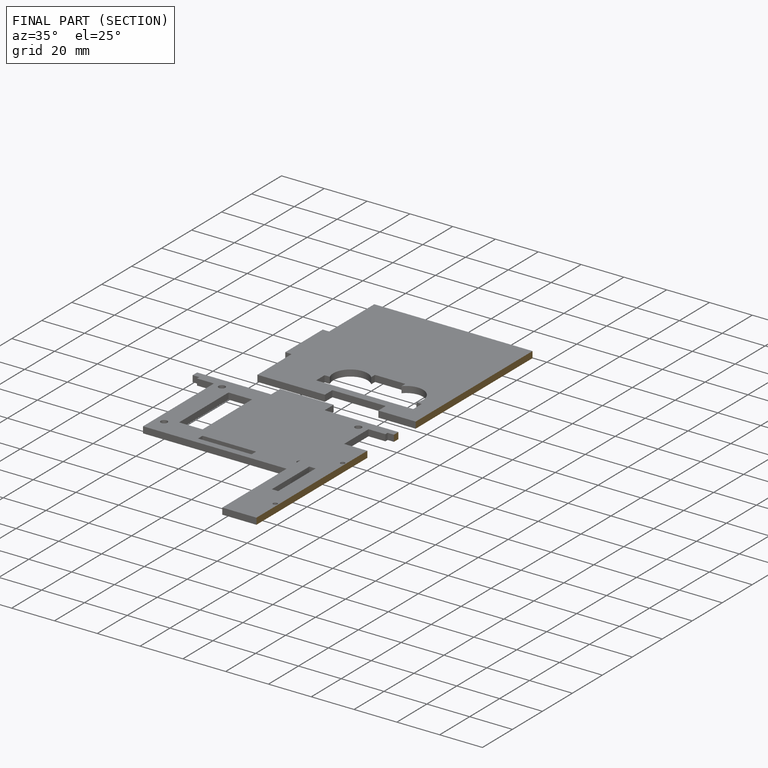
[diagram: finished part — half-section view (interior)]
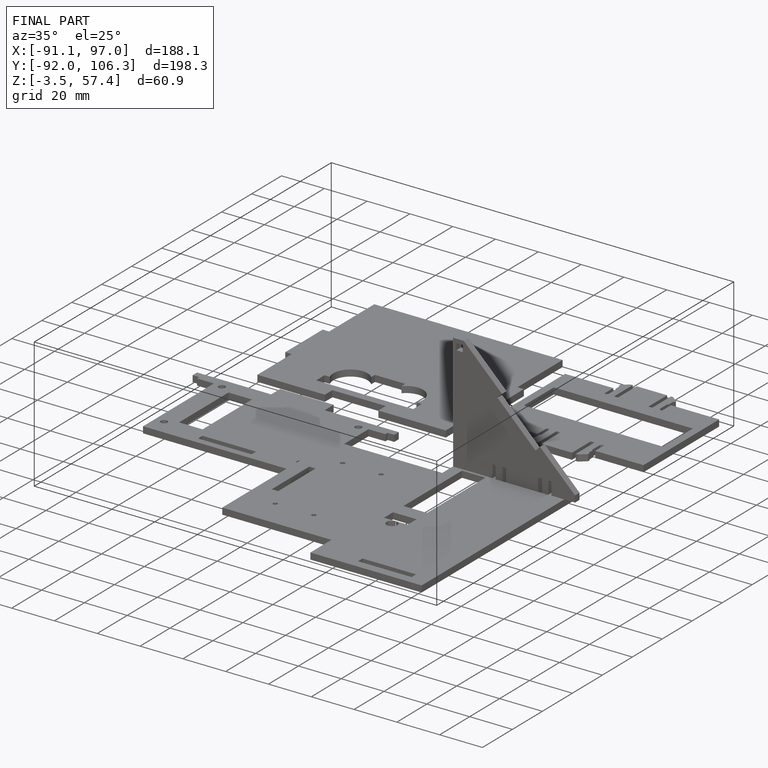
[diagram: finished part — iso view with bounding-box wireframe]
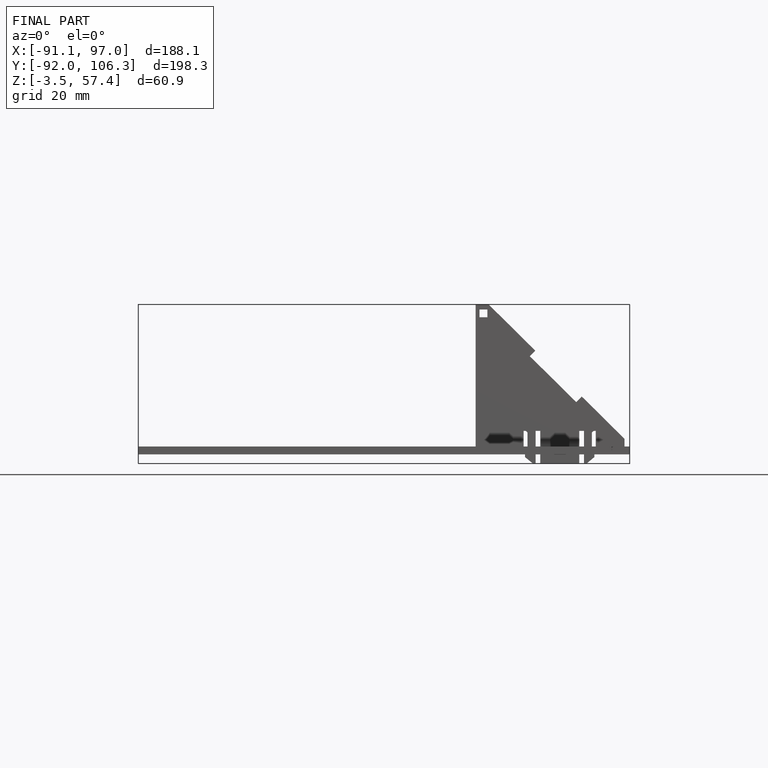
[diagram: finished part — front view with bounding-box wireframe]
